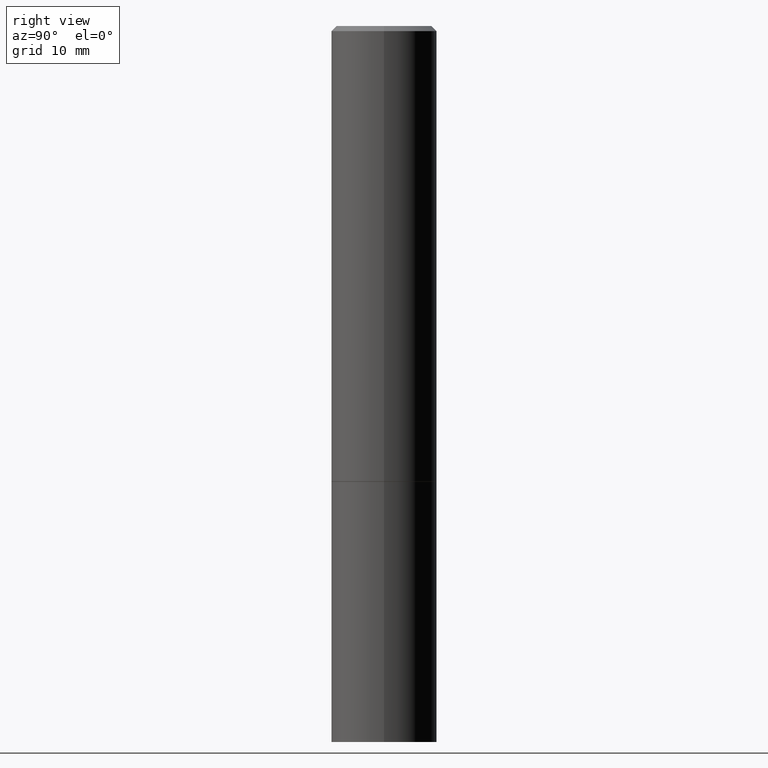
[diagram: clean part render]
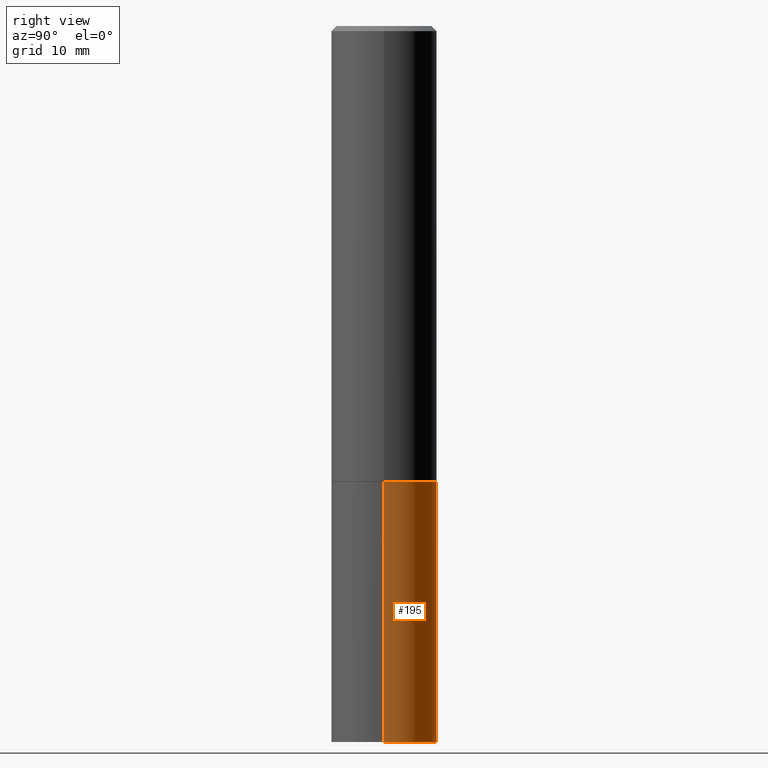
[diagram: same view with one face highlighted and labeled with its STEP entity id]
A machine part, right view. The second image highlights one B-rep face of the part: STEP entity #195.
In plain terms, the highlighted cylindrical surface (partial cylindrical patch) has radius 5.1587 mm, axis along (-0, 0, 1).
Its self-contained STEP definition (entity closure, byte-faithful):
#15 = CARTESIAN_POINT ( 'NONE',  ( 0.2030999999999997530, -1.099494082516604752E-14, -2.750000000000000000 ) ) ;
#16 = ORIENTED_EDGE ( 'NONE', *, *, #56, .T. ) ;
#34 = DIRECTION ( 'NONE',  ( -2.445468806185136597E-29, 3.491481338843145583E-15, 1.000000000000000000 ) ) ;
#36 = CARTESIAN_POINT ( 'NONE',  ( 4.279570410823988484E-29, -6.110092342975504671E-15, -1.750000000000000000 ) ) ;
#38 = LINE ( 'NONE', #390, #107 ) ;
#39 = CARTESIAN_POINT ( 'NONE',  ( 0.2031000000000000028, -1.418239719838080775E-15, 9.903515031641546145E-30 ) ) ;
#43 = CARTESIAN_POINT ( 'NONE',  ( 0.2031000000000000028, -7.528332062813585446E-15, -1.750000000000000000 ) ) ;
#53 = ORIENTED_EDGE ( 'NONE', *, *, #222, .F. ) ;
#56 = EDGE_CURVE ( 'NONE', #165, #173, #38, .T. ) ;
#61 = CYLINDRICAL_SURFACE ( 'NONE', #294, 0.2031000000000000028 ) ;
#65 = LINE ( 'NONE', #39, #300 ) ;
#74 = EDGE_CURVE ( 'NONE', #259, #173, #229, .T. ) ;
#96 = CARTESIAN_POINT ( 'NONE',  ( -0.2031000000000000028, -6.412720716068313768E-15, -1.750000000000000000 ) ) ;
#107 = VECTOR ( 'NONE', #272, 39.37007874015748143 ) ;
#124 = DIRECTION ( 'NONE',  ( 1.000000000000000000, -6.982962677686264344E-15, 0.000000000000000000 ) ) ;
#125 = FACE_OUTER_BOUND ( 'NONE', #234, .T. ) ;
#156 = EDGE_CURVE ( 'NONE', #250, #165, #176, .T. ) ;
#158 = DIRECTION ( 'NONE',  ( -2.445468806185136877E-29, 3.491481338843145188E-15, 1.000000000000000000 ) ) ;
#165 = VERTEX_POINT ( 'NONE', #248 ) ;
#173 = VERTEX_POINT ( 'NONE', #96 ) ;
#176 = CIRCLE ( 'NONE', #223, 0.2031000000000000028 ) ;
#181 = CARTESIAN_POINT ( 'NONE',  ( 0.000000000000000000, 0.000000000000000000, 0.000000000000000000 ) ) ;
#187 = DIRECTION ( 'NONE',  ( 1.000000000000000000, -6.982962677686269866E-15, 0.000000000000000000 ) ) ;
#191 = DIRECTION ( 'NONE',  ( -2.445468806185136597E-29, 3.491481338843145583E-15, 1.000000000000000000 ) ) ;
#195 = ADVANCED_FACE ( 'NONE', ( #125 ), #61, .T. ) ;
#204 = ORIENTED_EDGE ( 'NONE', *, *, #156, .T. ) ;
#213 = DIRECTION ( 'NONE',  ( 1.000000000000000000, -6.982962677686266711E-15, 4.876176775795935793E-29 ) ) ;
#222 = EDGE_CURVE ( 'NONE', #250, #259, #65, .T. ) ;
#223 = AXIS2_PLACEMENT_3D ( 'NONE', #331, #340, #124 ) ;
#229 = CIRCLE ( 'NONE', #367, 0.2031000000000000028 ) ;
#234 = EDGE_LOOP ( 'NONE', ( #204, #16, #316, #53 ) ) ;
#248 = CARTESIAN_POINT ( 'NONE',  ( -0.2030999999999997530, -8.183333961980571451E-15, -2.750000000000000000 ) ) ;
#250 = VERTEX_POINT ( 'NONE', #15 ) ;
#259 = VERTEX_POINT ( 'NONE', #43 ) ;
#272 = DIRECTION ( 'NONE',  ( -2.445468806185136877E-29, 3.491481338843145188E-15, 1.000000000000000000 ) ) ;
#294 = AXIS2_PLACEMENT_3D ( 'NONE', #181, #34, #213 ) ;
#300 = VECTOR ( 'NONE', #158, 39.37007874015748143 ) ;
#316 = ORIENTED_EDGE ( 'NONE', *, *, #74, .F. ) ;
#331 = CARTESIAN_POINT ( 'NONE',  ( 6.725039217009124520E-29, -9.601573681818649859E-15, -2.750000000000000000 ) ) ;
#340 = DIRECTION ( 'NONE',  ( -2.445468806185136597E-29, 3.491481338843145583E-15, 1.000000000000000000 ) ) ;
#367 = AXIS2_PLACEMENT_3D ( 'NONE', #36, #191, #187 ) ;
#390 = CARTESIAN_POINT ( 'NONE',  ( -0.2031000000000000028, 1.443112296328763497E-15, -9.990357168307714203E-30 ) ) ;